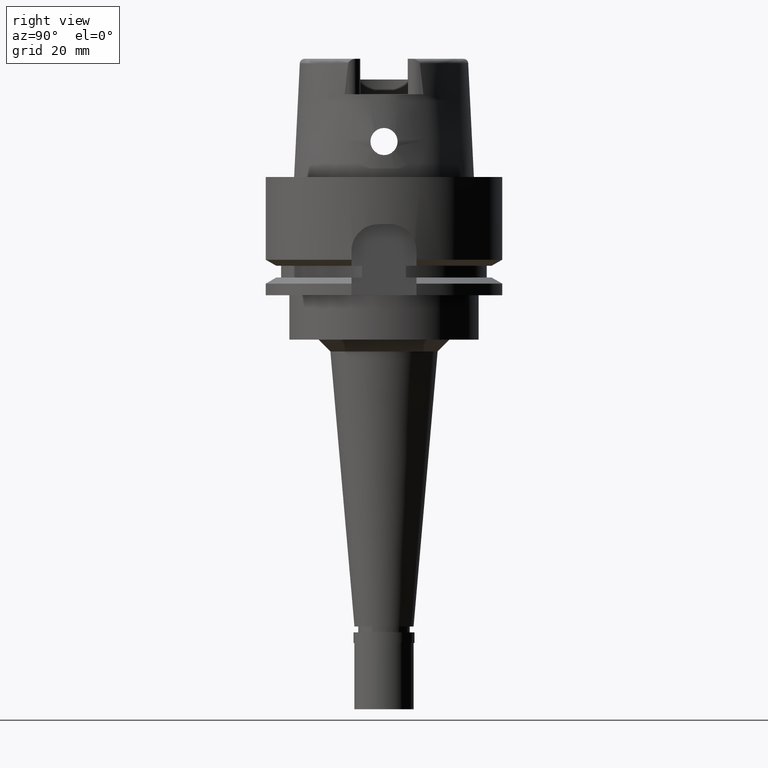
[diagram: clean part render]
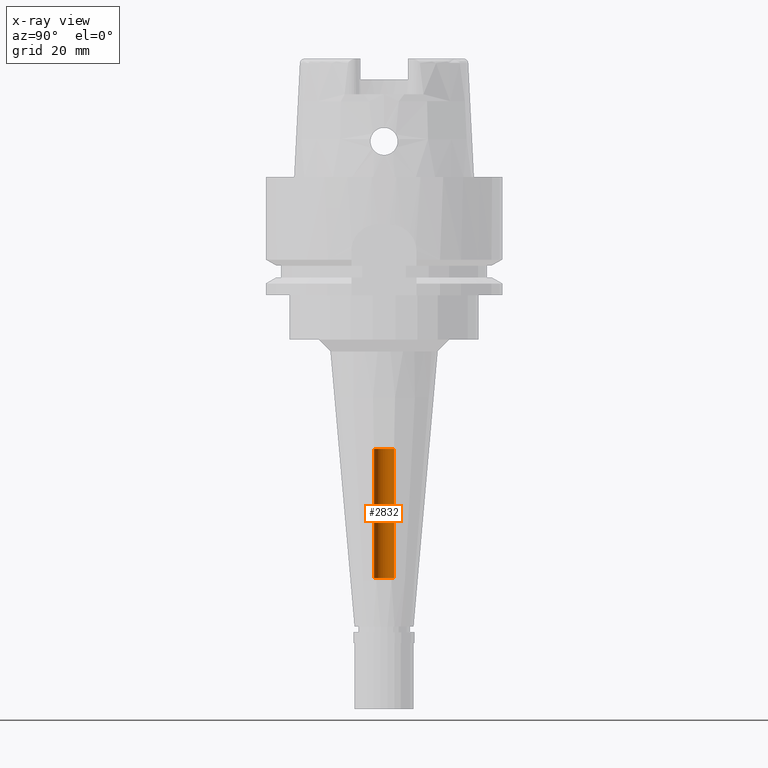
[diagram: x-ray — body ghosted, one internal face saturated and labeled with its STEP entity id]
A machine part, right view, then the same camera in x-ray: the body is ghosted and one INTERNAL B-rep face — a face not visible from any outside direction — is saturated and labeled: STEP entity #2832.
In plain terms, the highlighted cylindrical surface (edge-blend (fillet) strip) has radius 1.7 mm, axis along (0, 0, -1).
Its self-contained STEP definition (entity closure, byte-faithful):
#10 = EDGE_CURVE ( 'NONE', #2193, #2005, #3022, .T. ) ;
#278 = CIRCLE ( 'NONE', #1827, 1.699999999999999956 ) ;
#358 = CARTESIAN_POINT ( 'NONE',  ( 0.0000000000000000000, -1.699999999999999956, -67.79999999999999716 ) ) ;
#367 = ORIENTED_EDGE ( 'NONE', *, *, #2900, .T. ) ;
#517 = DIRECTION ( 'NONE',  ( 0.0000000000000000000, 0.0000000000000000000, 1.000000000000000000 ) ) ;
#1330 = LINE ( 'NONE', #4581, #1408 ) ;
#1408 = VECTOR ( 'NONE', #517, 1000.000000000000000 ) ;
#1827 = AXIS2_PLACEMENT_3D ( 'NONE', #2334, #2309, #3971 ) ;
#1978 = CARTESIAN_POINT ( 'NONE',  ( 0.0000000000000000000, 1.699999999999999956, -46.00000000000000000 ) ) ;
#2005 = VERTEX_POINT ( 'NONE', #3585 ) ;
#2193 = VERTEX_POINT ( 'NONE', #3932 ) ;
#2199 = CYLINDRICAL_SURFACE ( 'NONE', #3965, 1.699999999999999956 ) ;
#2259 = AXIS2_PLACEMENT_3D ( 'NONE', #3881, #2729, #5052 ) ;
#2309 = DIRECTION ( 'NONE',  ( 0.0000000000000000000, 0.0000000000000000000, 1.000000000000000000 ) ) ;
#2334 = CARTESIAN_POINT ( 'NONE',  ( 0.0000000000000000000, 1.534666136351999886E-14, -46.00000000000000000 ) ) ;
#2488 = EDGE_CURVE ( 'NONE', #2005, #4539, #1330, .T. ) ;
#2592 = EDGE_LOOP ( 'NONE', ( #367, #2818, #2796, #5114 ) ) ;
#2713 = EDGE_CURVE ( 'NONE', #2193, #3829, #3121, .T. ) ;
#2729 = DIRECTION ( 'NONE',  ( 0.0000000000000000000, 0.0000000000000000000, -1.000000000000000000 ) ) ;
#2796 = ORIENTED_EDGE ( 'NONE', *, *, #10, .T. ) ;
#2818 = ORIENTED_EDGE ( 'NONE', *, *, #2713, .F. ) ;
#2832 = ADVANCED_FACE ( 'NONE', ( #3808 ), #2199, .F. ) ;
#2900 = EDGE_CURVE ( 'NONE', #4539, #3829, #278, .T. ) ;
#3001 = DIRECTION ( 'NONE',  ( 0.0000000000000000000, 0.0000000000000000000, -1.000000000000000000 ) ) ;
#3022 = CIRCLE ( 'NONE', #2259, 1.699999999999999956 ) ;
#3121 = LINE ( 'NONE', #358, #4810 ) ;
#3549 = DIRECTION ( 'NONE',  ( 0.0000000000000000000, 0.0000000000000000000, 1.000000000000000000 ) ) ;
#3585 = CARTESIAN_POINT ( 'NONE',  ( 0.0000000000000000000, 1.699999999999999956, -67.79999999999999716 ) ) ;
#3715 = CARTESIAN_POINT ( 'NONE',  ( 0.0000000000000000000, -1.699999999999999956, -46.00000000000000000 ) ) ;
#3808 = FACE_OUTER_BOUND ( 'NONE', #2592, .T. ) ;
#3829 = VERTEX_POINT ( 'NONE', #3715 ) ;
#3881 = CARTESIAN_POINT ( 'NONE',  ( 0.0000000000000000000, 1.534666136351999886E-14, -67.79999999999999716 ) ) ;
#3932 = CARTESIAN_POINT ( 'NONE',  ( 0.0000000000000000000, -1.699999999999999956, -67.79999999999999716 ) ) ;
#3965 = AXIS2_PLACEMENT_3D ( 'NONE', #5036, #3001, #5121 ) ;
#3971 = DIRECTION ( 'NONE',  ( 0.0000000000000000000, 1.000000000000000000, 0.0000000000000000000 ) ) ;
#4539 = VERTEX_POINT ( 'NONE', #1978 ) ;
#4581 = CARTESIAN_POINT ( 'NONE',  ( 0.0000000000000000000, 1.699999999999999956, -67.79999999999999716 ) ) ;
#4810 = VECTOR ( 'NONE', #3549, 1000.000000000000000 ) ;
#5036 = CARTESIAN_POINT ( 'NONE',  ( 0.0000000000000000000, 1.534666136351999886E-14, 25.31500000000000128 ) ) ;
#5052 = DIRECTION ( 'NONE',  ( 0.0000000000000000000, -1.000000000000000000, 0.0000000000000000000 ) ) ;
#5114 = ORIENTED_EDGE ( 'NONE', *, *, #2488, .T. ) ;
#5121 = DIRECTION ( 'NONE',  ( 0.0000000000000000000, -1.000000000000000000, 0.0000000000000000000 ) ) ;